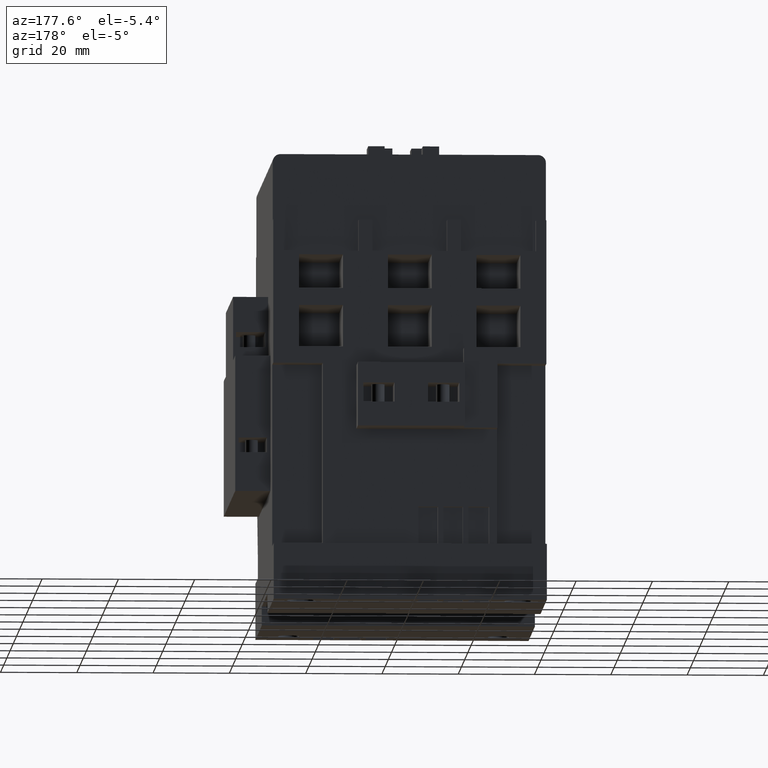
[diagram: clean part render]
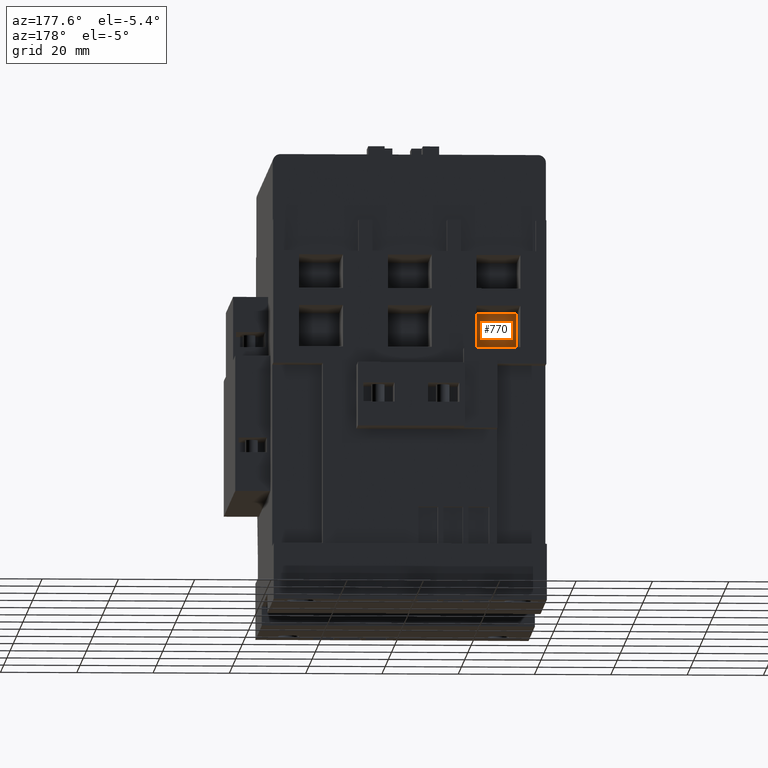
[diagram: same view with one face highlighted and labeled with its STEP entity id]
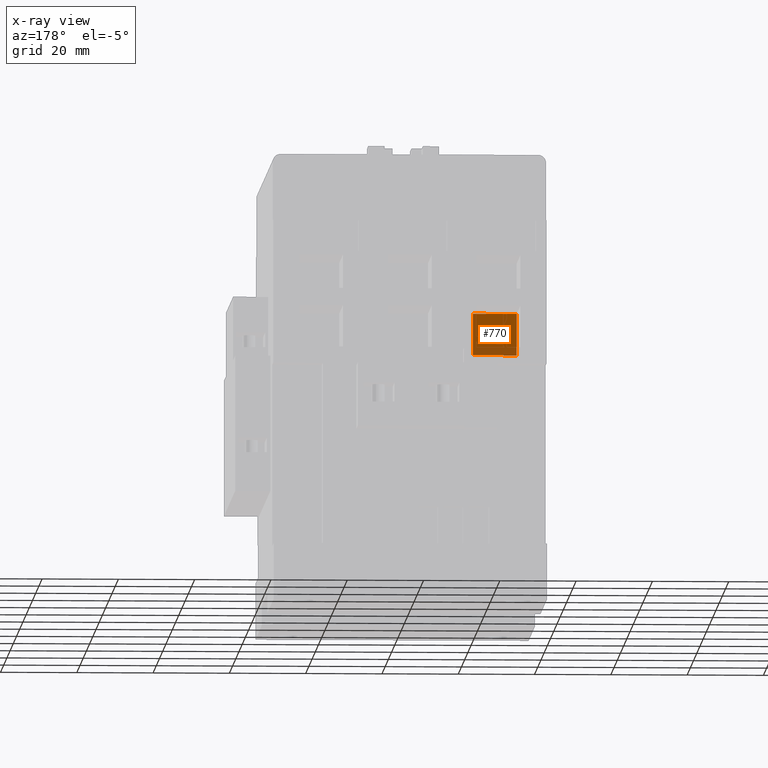
[diagram: x-ray of the same camera — body ghosted, the highlighted face saturated]
A machine part, auxiliary view. The second image highlights one B-rep face of the part: STEP entity #770.
The next image is the same camera in x-ray: the body ghosted, the highlighted face saturated — about 26% of this face is hidden behind the body in this view.
In plain terms, the highlighted planar face has unit normal (0, -1, 0).
Its self-contained STEP definition (entity closure, byte-faithful):
#364=FACE_OUTER_BOUND('',#1864,.T.);
#770=ADVANCED_FACE('',(#364),#1218,.F.);
#1218=PLANE('',#8791);
#1864=EDGE_LOOP('',(#3157,#3158,#3159,#3160));
#3157=ORIENTED_EDGE('',*,*,#5939,.T.);
#3158=ORIENTED_EDGE('',*,*,#5941,.T.);
#3159=ORIENTED_EDGE('',*,*,#5943,.T.);
#3160=ORIENTED_EDGE('',*,*,#5944,.T.);
#5023=VERTEX_POINT('',#12559);
#5024=VERTEX_POINT('',#12561);
#5025=VERTEX_POINT('',#12565);
#5026=VERTEX_POINT('',#12569);
#5939=EDGE_CURVE('',#5023,#5024,#7057,.T.);
#5941=EDGE_CURVE('',#5024,#5025,#7059,.T.);
#5943=EDGE_CURVE('',#5025,#5026,#7061,.T.);
#5944=EDGE_CURVE('',#5026,#5023,#7062,.T.);
#7057=LINE('',#12562,#8110);
#7059=LINE('',#12566,#8112);
#7061=LINE('',#12570,#8114);
#7062=LINE('',#12572,#8115);
#8110=VECTOR('',#10089,1.);
#8112=VECTOR('',#10093,1.);
#8114=VECTOR('',#10097,1.);
#8115=VECTOR('',#10100,1.);
#8791=AXIS2_PLACEMENT_3D('',#12574,#10103,#10104);
#10089=DIRECTION('',(1.,0.,0.));
#10093=DIRECTION('',(-6.36595771000663E-016,0.,-1.));
#10097=DIRECTION('',(-1.,0.,1.20676415720126E-015));
#10100=DIRECTION('',(0.,0.,1.));
#10103=DIRECTION('',(0.,-1.,0.));
#10104=DIRECTION('',(0.,0.,1.));
#12559=CARTESIAN_POINT('',(-29.,30.7,72.65));
#12561=CARTESIAN_POINT('',(-17.5,30.7,72.65));
#12562=CARTESIAN_POINT('',(-29.,30.7,72.65));
#12565=CARTESIAN_POINT('',(-17.5,30.7,61.75));
#12566=CARTESIAN_POINT('',(-17.5,30.7,72.65));
#12569=CARTESIAN_POINT('',(-29.,30.7,61.75));
#12570=CARTESIAN_POINT('',(-17.5,30.7,61.75));
#12572=CARTESIAN_POINT('',(-29.,30.7,61.75));
#12574=CARTESIAN_POINT('',(-17.5,30.7,72.65));